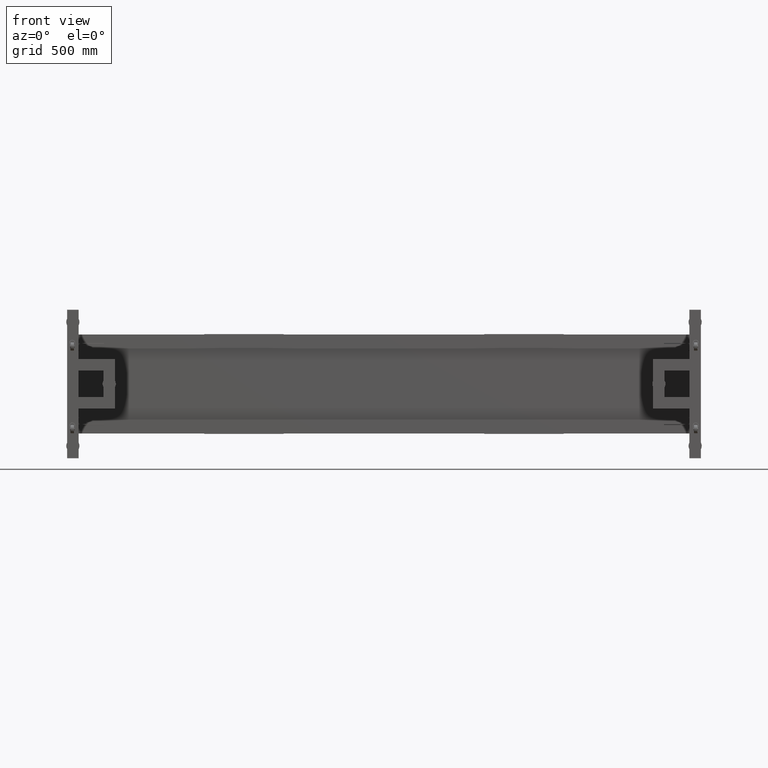
[diagram: clean part render]
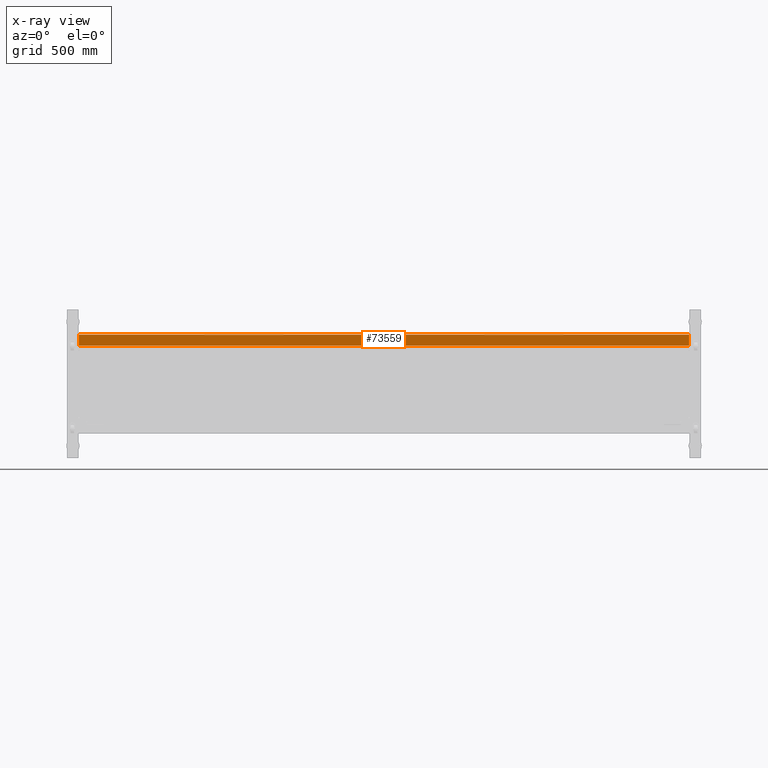
[diagram: x-ray — body ghosted, one internal face saturated and labeled with its STEP entity id]
A machine part, front view, then the same camera in x-ray: the body is ghosted and one INTERNAL B-rep face — a face not visible from any outside direction — is saturated and labeled: STEP entity #73559.
In plain terms, the highlighted planar face has unit normal (0, -1, -0).
Its self-contained STEP definition (entity closure, byte-faithful):
#4089 = LINE ( 'NONE', #34756, #66316 ) ;
#5401 = CARTESIAN_POINT ( 'NONE',  ( -566.1724874371851683, 554.4410804020110390, 232.5000000000000853 ) ) ;
#7510 = VERTEX_POINT ( 'NONE', #46253 ) ;
#7644 = EDGE_CURVE ( 'NONE', #69690, #23927, #4089, .T. ) ;
#8858 = DIRECTION ( 'NONE',  ( 0.000000000000000000, -2.999999999999999839E-15, 1.000000000000000000 ) ) ;
#9315 = EDGE_LOOP ( 'NONE', ( #47771, #70519, #76734, #21785 ) ) ;
#19259 = CARTESIAN_POINT ( 'NONE',  ( 2429.827512562815627, 554.4410804020112664, 297.5000000000001137 ) ) ;
#19321 = FACE_OUTER_BOUND ( 'NONE', #9315, .T. ) ;
#21785 = ORIENTED_EDGE ( 'NONE', *, *, #38910, .F. ) ;
#22283 = VERTEX_POINT ( 'NONE', #37077 ) ;
#23927 = VERTEX_POINT ( 'NONE', #19259 ) ;
#29380 = DIRECTION ( 'NONE',  ( 1.000000000000000000, 4.543257172554223644E-16, 0.000000000000000000 ) ) ;
#30627 = VECTOR ( 'NONE', #73551, 1000.000000000000000 ) ;
#34208 = LINE ( 'NONE', #57951, #62366 ) ;
#34756 = CARTESIAN_POINT ( 'NONE',  ( 2429.827512562815627, 554.4410804020114938, 232.5000000000000853 ) ) ;
#37077 = CARTESIAN_POINT ( 'NONE',  ( -1266.172487437185964, 554.4410804020108117, 297.5000000000001137 ) ) ;
#37092 = CARTESIAN_POINT ( 'NONE',  ( -566.1724874371851683, 554.4410804020108117, 297.5000000000001137 ) ) ;
#38910 = EDGE_CURVE ( 'NONE', #7510, #22283, #34208, .T. ) ;
#41783 = EDGE_CURVE ( 'NONE', #7510, #69690, #60116, .T. ) ;
#42638 = PLANE ( 'NONE',  #50170 ) ;
#46253 = CARTESIAN_POINT ( 'NONE',  ( -1266.172487437185964, 554.4410804020110390, 232.5000000000000853 ) ) ;
#47450 = DIRECTION ( 'NONE',  ( 6.650868081707682811E-31, -2.999999999999999839E-15, 1.000000000000000000 ) ) ;
#47771 = ORIENTED_EDGE ( 'NONE', *, *, #41783, .T. ) ;
#50170 = AXIS2_PLACEMENT_3D ( 'NONE', #5401, #55711, #80682 ) ;
#55711 = DIRECTION ( 'NONE',  ( 4.543257172554223644E-16, -1.000000000000000000, -2.999999999999999839E-15 ) ) ;
#56344 = LINE ( 'NONE', #37092, #30627 ) ;
#57951 = CARTESIAN_POINT ( 'NONE',  ( -1266.172487437185964, 554.4410804020110390, 232.5000000000000853 ) ) ;
#58063 = VECTOR ( 'NONE', #29380, 1000.000000000000000 ) ;
#60116 = LINE ( 'NONE', #71985, #58063 ) ;
#62366 = VECTOR ( 'NONE', #8858, 1000.000000000000000 ) ;
#66316 = VECTOR ( 'NONE', #47450, 1000.000000000000000 ) ;
#69690 = VERTEX_POINT ( 'NONE', #75878 ) ;
#70519 = ORIENTED_EDGE ( 'NONE', *, *, #7644, .T. ) ;
#71985 = CARTESIAN_POINT ( 'NONE',  ( -566.1724874371851683, 554.4410804020110390, 232.5000000000000853 ) ) ;
#73551 = DIRECTION ( 'NONE',  ( 1.000000000000000000, 4.543257172554223644E-16, 0.000000000000000000 ) ) ;
#73559 = ADVANCED_FACE ( 'NONE', ( #19321 ), #42638, .T. ) ;
#75505 = EDGE_CURVE ( 'NONE', #22283, #23927, #56344, .T. ) ;
#75878 = CARTESIAN_POINT ( 'NONE',  ( 2429.827512562815627, 554.4410804020114938, 232.5000000000000853 ) ) ;
#76734 = ORIENTED_EDGE ( 'NONE', *, *, #75505, .F. ) ;
#80682 = DIRECTION ( 'NONE',  ( 1.362977151766267009E-30, -2.999999999999999839E-15, 1.000000000000000000 ) ) ;